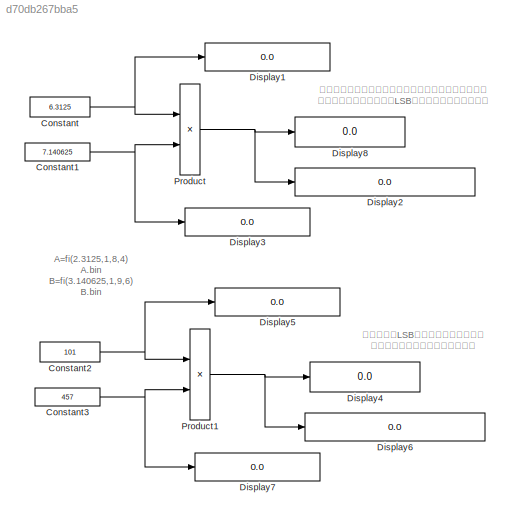
MODEL slx_d70db267bba5
KIND model
CONFIG AbsTol = auto
CONFIG FixedStep = 1
CONFIG MaxStep = auto
CONFIG MinStep = auto
CONFIG RelTol = 1e-3
CONFIG SampleTimeConstraint = Unconstrained
CONFIG Solver = FixedStepDiscrete
CONFIG SolverMode = Auto
CONFIG SolverName = FixedStepDiscrete
CONFIG StartTime = 0.0
CONFIG StopTime = 0
BLOCK [Constant] Constant
  AttributesFormatString = DataType = %<OutDataTypeStr>
  OutDataTypeStr = fixdt(1,8,4)
  SampleTime = -1
  Value = 6.3125
BLOCK [Constant] Constant1
  AttributesFormatString = DataType = %<OutDataTypeStr>
  OutDataTypeStr = fixdt(1,10,6)
  SampleTime = -1
  Value = 7.140625
BLOCK [Constant] Constant2
  AttributesFormatString = DataType = %<OutDataTypeStr>
  OutDataTypeStr = fixdt(1,8,0)
  SampleTime = -1
  Value = 101
BLOCK [Constant] Constant3
  AttributesFormatString = DataType = %<OutDataTypeStr>
  OutDataTypeStr = fixdt(1,10,0)
  SampleTime = -1
  Value = 457
BLOCK [Display] Display1
  Decimation = 1
  Format = binary (Stored Integer)
  Ports = [1]
BLOCK [Display] Display2
  Decimation = 1
  Format = binary (Stored Integer)
  Ports = [1]
BLOCK [Display] Display3
  Decimation = 1
  Format = binary (Stored Integer)
  Ports = [1]
BLOCK [Display] Display4
  Decimation = 1
  Ports = [1]
BLOCK [Display] Display5
  Decimation = 1
  Format = binary (Stored Integer)
  Ports = [1]
BLOCK [Display] Display6
  Decimation = 1
  Format = binary (Stored Integer)
  Ports = [1]
BLOCK [Display] Display7
  Decimation = 1
  Format = binary (Stored Integer)
  Ports = [1]
BLOCK [Display] Display8
  Decimation = 1
  Ports = [1]
BLOCK [Product] Product
  InputSameDT = off
  OutDataTypeStr = Inherit: Inherit via internal rule
  Ports = [2, 1]
  RndMeth = Nearest
  SaturateOnIntegerOverflow = off
BLOCK [Product] Product1
  InputSameDT = off
  OutDataTypeStr = Inherit: Inherit via internal rule
  Ports = [2, 1]
  RndMeth = Nearest
  SaturateOnIntegerOverflow = off
ANNOTATION (root): A=fi(2.3125,1,8,4) A.bin B=fi(3.140625,1,9,6) B.bin
ANNOTATION (root): 固定小数点の場合、小数点位置を合わせて演算する。 計算結果は精度によってLSB側のビットを丸められる
ANNOTATION (root): 整数の場合LSBを合わせて演算する。 ビットが演算のたびに大きくなる
NET Constant1:1 -> Display3:1, Product:2
NET Constant2:1 -> Display5:1, Product1:1
NET Constant3:1 -> Display7:1, Product1:2
NET Constant:1 -> Display1:1, Product:1
NET Product1:1 -> Display4:1, Display6:1
NET Product:1 -> Display2:1, Display8:1
note: NET lines group one-source signal fan-out (src -> all destinations, sorted); 1:1 wires keep LINE
